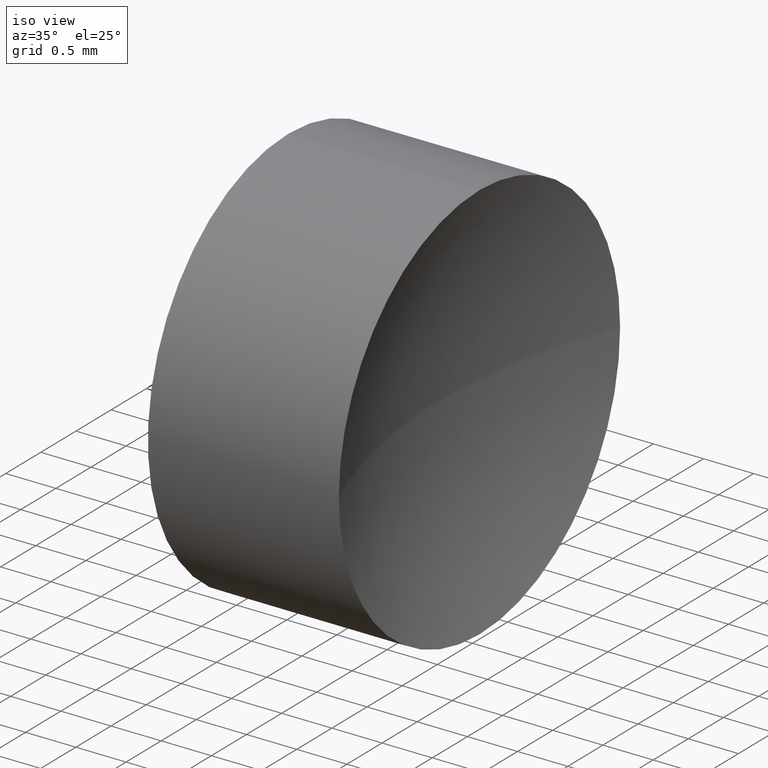
[diagram: clean part render]
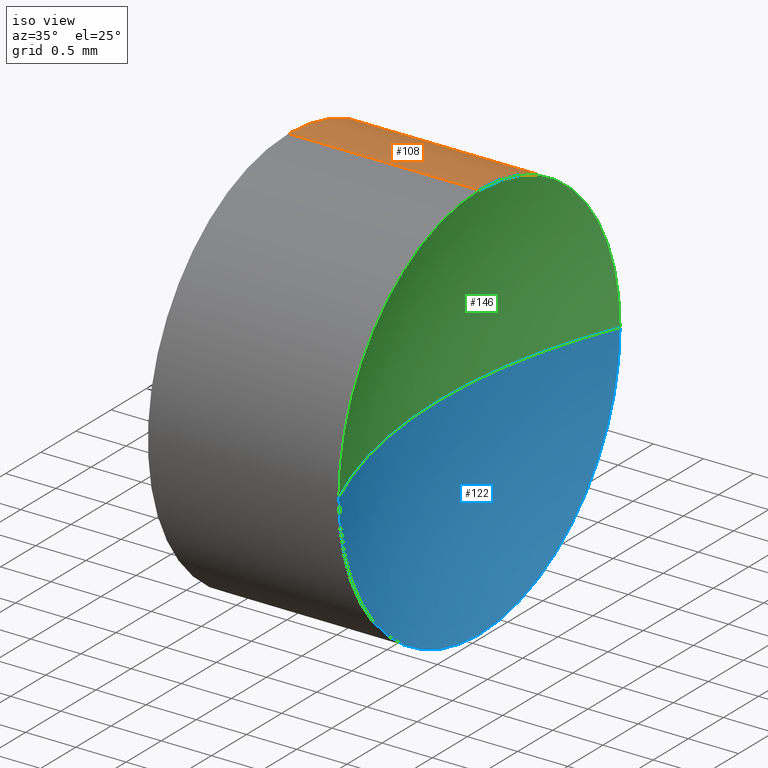
[diagram: same view with three faces highlighted in distinct colors, each labeled with its STEP entity id]
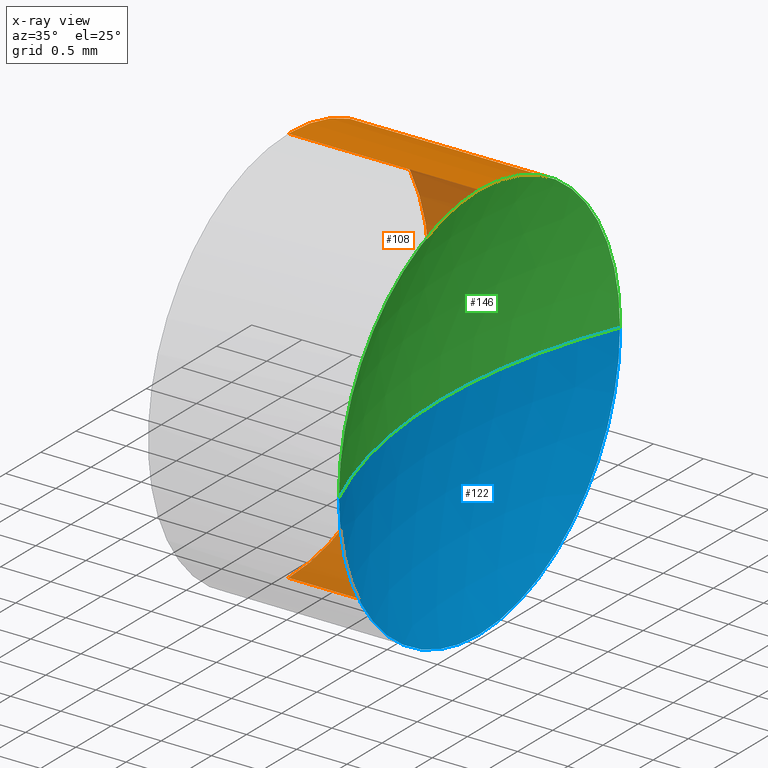
[diagram: x-ray of the same camera — body ghosted, the three highlighted faces saturated]
A machine part, iso view with three faces highlighted in distinct colors.
The next image is the same camera in x-ray (body ghosted, the three faces saturated) — at least one of them is partly hidden behind the body in this view.
Their STEP definitions:

[orange] entity #108 — the highlighted cylindrical surface (partial cylindrical patch) has radius 2 mm, axis along (-1, -0, -0).
#1 = AXIS2_PLACEMENT_3D ( 'NONE', #55, #19, #153 ) ;
#2 = LINE ( 'NONE', #148, #164 ) ;
#4 = CARTESIAN_POINT ( 'NONE',  ( 13.05950626288892900, 8.515563045701522800, 2.449293598294708900E-016 ) ) ;
#8 = CARTESIAN_POINT ( 'NONE',  ( 13.05950626288892900, 6.515563045701520100, -2.000000000000000900 ) ) ;
#9 = EDGE_CURVE ( 'NONE', #84, #161, #23, .T. ) ;
#16 = CIRCLE ( 'NONE', #72, 2.000000000000000900 ) ;
#18 = ORIENTED_EDGE ( 'NONE', *, *, #9, .T. ) ;
#19 = DIRECTION ( 'NONE',  ( -1.000000000000000000, -0.0000000000000000000, -0.0000000000000000000 ) ) ;
#23 = CIRCLE ( 'NONE', #44, 2.000000000000000900 ) ;
#26 = FACE_OUTER_BOUND ( 'NONE', #145, .T. ) ;
#33 = CIRCLE ( 'NONE', #86, 2.000000000000000900 ) ;
#35 = DIRECTION ( 'NONE',  ( -1.000000000000000000, -0.0000000000000000000, -0.0000000000000000000 ) ) ;
#40 = LINE ( 'NONE', #119, #130 ) ;
#44 = AXIS2_PLACEMENT_3D ( 'NONE', #93, #35, #106 ) ;
#45 = CARTESIAN_POINT ( 'NONE',  ( 11.15698987586548600, 6.515563045701520100, 2.000000000000000900 ) ) ;
#55 = CARTESIAN_POINT ( 'NONE',  ( 10.34201531756644400, 6.515563045701520100, 0.0000000000000000000 ) ) ;
#57 = DIRECTION ( 'NONE',  ( -1.000000000000000000, -0.0000000000000000000, -0.0000000000000000000 ) ) ;
#68 = ORIENTED_EDGE ( 'NONE', *, *, #79, .F. ) ;
#72 = AXIS2_PLACEMENT_3D ( 'NONE', #83, #57, #95 ) ;
#76 = EDGE_CURVE ( 'NONE', #166, #84, #16, .T. ) ;
#79 = EDGE_CURVE ( 'NONE', #166, #118, #40, .T. ) ;
#83 = CARTESIAN_POINT ( 'NONE',  ( 13.05950626288892900, 6.515563045701520100, 0.0000000000000000000 ) ) ;
#84 = VERTEX_POINT ( 'NONE', #4 ) ;
#86 = AXIS2_PLACEMENT_3D ( 'NONE', #113, #110, #87 ) ;
#87 = DIRECTION ( 'NONE',  ( 0.0000000000000000000, 0.0000000000000000000, 1.000000000000000000 ) ) ;
#90 = ORIENTED_EDGE ( 'NONE', *, *, #96, .T. ) ;
#93 = CARTESIAN_POINT ( 'NONE',  ( 13.05950626288892900, 6.515563045701520100, 0.0000000000000000000 ) ) ;
#95 = DIRECTION ( 'NONE',  ( 0.0000000000000000000, 0.0000000000000000000, 1.000000000000000000 ) ) ;
#96 = EDGE_CURVE ( 'NONE', #161, #123, #2, .T. ) ;
#104 = EDGE_CURVE ( 'NONE', #118, #123, #33, .T. ) ;
#106 = DIRECTION ( 'NONE',  ( 0.0000000000000000000, 0.0000000000000000000, 1.000000000000000000 ) ) ;
#108 = ADVANCED_FACE ( 'NONE', ( #26 ), #185, .T. ) ;
#110 = DIRECTION ( 'NONE',  ( -1.000000000000000000, -0.0000000000000000000, -0.0000000000000000000 ) ) ;
#113 = CARTESIAN_POINT ( 'NONE',  ( 11.15698987586548600, 6.515563045701520100, 0.0000000000000000000 ) ) ;
#114 = ORIENTED_EDGE ( 'NONE', *, *, #104, .F. ) ;
#118 = VERTEX_POINT ( 'NONE', #45 ) ;
#119 = CARTESIAN_POINT ( 'NONE',  ( 10.34201531756644400, 6.515563045701520100, 2.000000000000000900 ) ) ;
#123 = VERTEX_POINT ( 'NONE', #128 ) ;
#128 = CARTESIAN_POINT ( 'NONE',  ( 11.15698987586548600, 6.515563045701520100, -2.000000000000000900 ) ) ;
#130 = VECTOR ( 'NONE', #131, 1000.000000000000000 ) ;
#131 = DIRECTION ( 'NONE',  ( -1.000000000000000000, -0.0000000000000000000, -0.0000000000000000000 ) ) ;
#132 = DIRECTION ( 'NONE',  ( -1.000000000000000000, -0.0000000000000000000, -0.0000000000000000000 ) ) ;
#145 = EDGE_LOOP ( 'NONE', ( #18, #90, #114, #68, #175 ) ) ;
#148 = CARTESIAN_POINT ( 'NONE',  ( 10.34201531756644400, 6.515563045701520100, -2.000000000000000900 ) ) ;
#153 = DIRECTION ( 'NONE',  ( 0.0000000000000000000, 0.0000000000000000000, 1.000000000000000000 ) ) ;
#161 = VERTEX_POINT ( 'NONE', #8 ) ;
#164 = VECTOR ( 'NONE', #132, 1000.000000000000000 ) ;
#166 = VERTEX_POINT ( 'NONE', #183 ) ;
#175 = ORIENTED_EDGE ( 'NONE', *, *, #76, .T. ) ;
#183 = CARTESIAN_POINT ( 'NONE',  ( 13.05950626288892900, 6.515563045701520100, 2.000000000000000900 ) ) ;
#185 = CYLINDRICAL_SURFACE ( 'NONE', #1, 2.000000000000000900 ) ;

[blue] entity #122 — the highlighted spherical surface has radius 5.17 mm.
#4 = CARTESIAN_POINT ( 'NONE',  ( 13.05950626288892900, 8.515563045701522800, 2.449293598294708900E-016 ) ) ;
#5 = DIRECTION ( 'NONE',  ( 0.0000000000000000000, 0.0000000000000000000, -1.000000000000000000 ) ) ;
#7 = ORIENTED_EDGE ( 'NONE', *, *, #9, .F. ) ;
#8 = CARTESIAN_POINT ( 'NONE',  ( 13.05950626288892900, 6.515563045701520100, -2.000000000000000900 ) ) ;
#9 = EDGE_CURVE ( 'NONE', #84, #161, #23, .T. ) ;
#10 = DIRECTION ( 'NONE',  ( 0.0000000000000000000, 0.0000000000000000000, 1.000000000000000000 ) ) ;
#20 = AXIS2_PLACEMENT_3D ( 'NONE', #85, #10, #21 ) ;
#21 = DIRECTION ( 'NONE',  ( 0.0000000000000000000, -1.000000000000000000, 0.0000000000000000000 ) ) ;
#23 = CIRCLE ( 'NONE', #44, 2.000000000000000900 ) ;
#31 = EDGE_CURVE ( 'NONE', #84, #184, #49, .T. ) ;
#35 = DIRECTION ( 'NONE',  ( -1.000000000000000000, -0.0000000000000000000, -0.0000000000000000000 ) ) ;
#37 = CARTESIAN_POINT ( 'NONE',  ( 17.82698987586548600, 6.515563045701520100, 0.0000000000000000000 ) ) ;
#44 = AXIS2_PLACEMENT_3D ( 'NONE', #93, #35, #106 ) ;
#49 = CIRCLE ( 'NONE', #150, 5.170000000000000800 ) ;
#50 = EDGE_CURVE ( 'NONE', #161, #176, #102, .T. ) ;
#54 = DIRECTION ( 'NONE',  ( 0.0000000000000000000, -1.224646799147353200E-016, 1.000000000000000000 ) ) ;
#70 = ORIENTED_EDGE ( 'NONE', *, *, #89, .F. ) ;
#74 = CIRCLE ( 'NONE', #162, 5.170000000000000800 ) ;
#77 = EDGE_LOOP ( 'NONE', ( #7, #117, #70, #92 ) ) ;
#84 = VERTEX_POINT ( 'NONE', #4 ) ;
#85 = CARTESIAN_POINT ( 'NONE',  ( 17.82698987586548600, 6.515563045701520100, 0.0000000000000000000 ) ) ;
#89 = EDGE_CURVE ( 'NONE', #176, #184, #74, .T. ) ;
#91 = CARTESIAN_POINT ( 'NONE',  ( 13.05950626288892900, 6.515563045701520100, 0.0000000000000000000 ) ) ;
#92 = ORIENTED_EDGE ( 'NONE', *, *, #50, .F. ) ;
#93 = CARTESIAN_POINT ( 'NONE',  ( 13.05950626288892900, 6.515563045701520100, 0.0000000000000000000 ) ) ;
#102 = CIRCLE ( 'NONE', #115, 2.000000000000000900 ) ;
#106 = DIRECTION ( 'NONE',  ( 0.0000000000000000000, 0.0000000000000000000, 1.000000000000000000 ) ) ;
#115 = AXIS2_PLACEMENT_3D ( 'NONE', #91, #120, #149 ) ;
#117 = ORIENTED_EDGE ( 'NONE', *, *, #31, .T. ) ;
#120 = DIRECTION ( 'NONE',  ( -1.000000000000000000, -0.0000000000000000000, -0.0000000000000000000 ) ) ;
#122 = ADVANCED_FACE ( 'NONE', ( #173 ), #151, .F. ) ;
#136 = DIRECTION ( 'NONE',  ( -1.000000000000000000, 0.0000000000000000000, 0.0000000000000000000 ) ) ;
#138 = CARTESIAN_POINT ( 'NONE',  ( 12.65698987586548400, 6.515563045701520100, 0.0000000000000000000 ) ) ;
#147 = DIRECTION ( 'NONE',  ( 0.0000000000000000000, -1.000000000000000000, -1.224646799147353200E-016 ) ) ;
#149 = DIRECTION ( 'NONE',  ( 0.0000000000000000000, 0.0000000000000000000, 1.000000000000000000 ) ) ;
#150 = AXIS2_PLACEMENT_3D ( 'NONE', #160, #54, #147 ) ;
#151 = SPHERICAL_SURFACE ( 'NONE', #20, 5.170000000000000800 ) ;
#160 = CARTESIAN_POINT ( 'NONE',  ( 17.82698987586548600, 6.515563045701520100, 0.0000000000000000000 ) ) ;
#161 = VERTEX_POINT ( 'NONE', #8 ) ;
#162 = AXIS2_PLACEMENT_3D ( 'NONE', #37, #5, #136 ) ;
#165 = CARTESIAN_POINT ( 'NONE',  ( 13.05950626288892900, 4.515563045701518300, 0.0000000000000000000 ) ) ;
#173 = FACE_OUTER_BOUND ( 'NONE', #77, .T. ) ;
#176 = VERTEX_POINT ( 'NONE', #165 ) ;
#184 = VERTEX_POINT ( 'NONE', #138 ) ;

[green] entity #146 — the highlighted spherical surface has radius 5.17 mm.
#3 = CIRCLE ( 'NONE', #144, 2.000000000000000900 ) ;
#4 = CARTESIAN_POINT ( 'NONE',  ( 13.05950626288892900, 8.515563045701522800, 2.449293598294708900E-016 ) ) ;
#5 = DIRECTION ( 'NONE',  ( 0.0000000000000000000, 0.0000000000000000000, -1.000000000000000000 ) ) ;
#12 = CARTESIAN_POINT ( 'NONE',  ( 13.05950626288892900, 6.515563045701520100, 0.0000000000000000000 ) ) ;
#16 = CIRCLE ( 'NONE', #72, 2.000000000000000900 ) ;
#31 = EDGE_CURVE ( 'NONE', #84, #184, #49, .T. ) ;
#36 = AXIS2_PLACEMENT_3D ( 'NONE', #182, #88, #126 ) ;
#37 = CARTESIAN_POINT ( 'NONE',  ( 17.82698987586548600, 6.515563045701520100, 0.0000000000000000000 ) ) ;
#49 = CIRCLE ( 'NONE', #150, 5.170000000000000800 ) ;
#54 = DIRECTION ( 'NONE',  ( 0.0000000000000000000, -1.224646799147353200E-016, 1.000000000000000000 ) ) ;
#57 = DIRECTION ( 'NONE',  ( -1.000000000000000000, -0.0000000000000000000, -0.0000000000000000000 ) ) ;
#66 = ORIENTED_EDGE ( 'NONE', *, *, #31, .F. ) ;
#72 = AXIS2_PLACEMENT_3D ( 'NONE', #83, #57, #95 ) ;
#74 = CIRCLE ( 'NONE', #162, 5.170000000000000800 ) ;
#75 = DIRECTION ( 'NONE',  ( 0.0000000000000000000, 0.0000000000000000000, 1.000000000000000000 ) ) ;
#76 = EDGE_CURVE ( 'NONE', #166, #84, #16, .T. ) ;
#80 = SPHERICAL_SURFACE ( 'NONE', #36, 5.170000000000000800 ) ;
#83 = CARTESIAN_POINT ( 'NONE',  ( 13.05950626288892900, 6.515563045701520100, 0.0000000000000000000 ) ) ;
#84 = VERTEX_POINT ( 'NONE', #4 ) ;
#88 = DIRECTION ( 'NONE',  ( 0.0000000000000000000, 0.0000000000000000000, 1.000000000000000000 ) ) ;
#89 = EDGE_CURVE ( 'NONE', #176, #184, #74, .T. ) ;
#95 = DIRECTION ( 'NONE',  ( 0.0000000000000000000, 0.0000000000000000000, 1.000000000000000000 ) ) ;
#97 = FACE_OUTER_BOUND ( 'NONE', #140, .T. ) ;
#98 = ORIENTED_EDGE ( 'NONE', *, *, #89, .T. ) ;
#126 = DIRECTION ( 'NONE',  ( 0.0000000000000000000, -1.000000000000000000, 0.0000000000000000000 ) ) ;
#129 = DIRECTION ( 'NONE',  ( -1.000000000000000000, -0.0000000000000000000, -0.0000000000000000000 ) ) ;
#136 = DIRECTION ( 'NONE',  ( -1.000000000000000000, 0.0000000000000000000, 0.0000000000000000000 ) ) ;
#138 = CARTESIAN_POINT ( 'NONE',  ( 12.65698987586548400, 6.515563045701520100, 0.0000000000000000000 ) ) ;
#140 = EDGE_LOOP ( 'NONE', ( #66, #172, #158, #98 ) ) ;
#144 = AXIS2_PLACEMENT_3D ( 'NONE', #12, #129, #75 ) ;
#146 = ADVANCED_FACE ( 'NONE', ( #97 ), #80, .F. ) ;
#147 = DIRECTION ( 'NONE',  ( 0.0000000000000000000, -1.000000000000000000, -1.224646799147353200E-016 ) ) ;
#150 = AXIS2_PLACEMENT_3D ( 'NONE', #160, #54, #147 ) ;
#158 = ORIENTED_EDGE ( 'NONE', *, *, #178, .F. ) ;
#160 = CARTESIAN_POINT ( 'NONE',  ( 17.82698987586548600, 6.515563045701520100, 0.0000000000000000000 ) ) ;
#162 = AXIS2_PLACEMENT_3D ( 'NONE', #37, #5, #136 ) ;
#165 = CARTESIAN_POINT ( 'NONE',  ( 13.05950626288892900, 4.515563045701518300, 0.0000000000000000000 ) ) ;
#166 = VERTEX_POINT ( 'NONE', #183 ) ;
#172 = ORIENTED_EDGE ( 'NONE', *, *, #76, .F. ) ;
#176 = VERTEX_POINT ( 'NONE', #165 ) ;
#178 = EDGE_CURVE ( 'NONE', #176, #166, #3, .T. ) ;
#182 = CARTESIAN_POINT ( 'NONE',  ( 17.82698987586548600, 6.515563045701520100, 0.0000000000000000000 ) ) ;
#183 = CARTESIAN_POINT ( 'NONE',  ( 13.05950626288892900, 6.515563045701520100, 2.000000000000000900 ) ) ;
#184 = VERTEX_POINT ( 'NONE', #138 ) ;